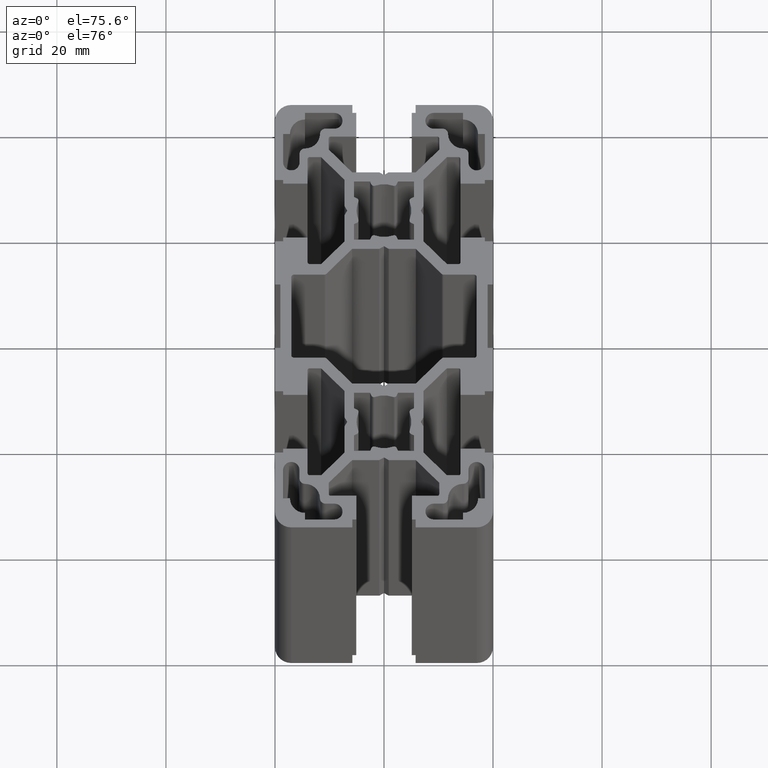
[diagram: clean part render]
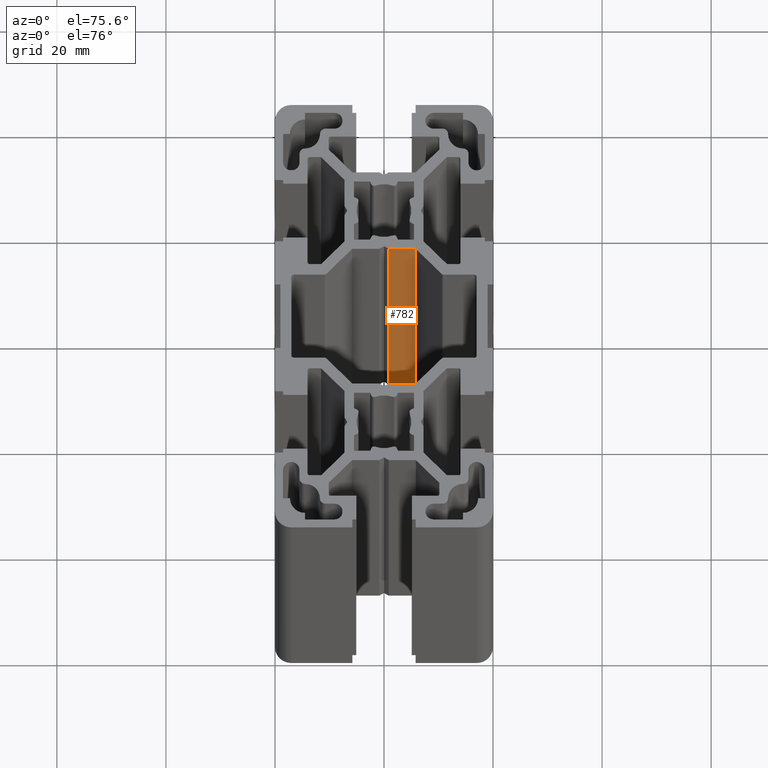
[diagram: same view with one face highlighted and labeled with its STEP entity id]
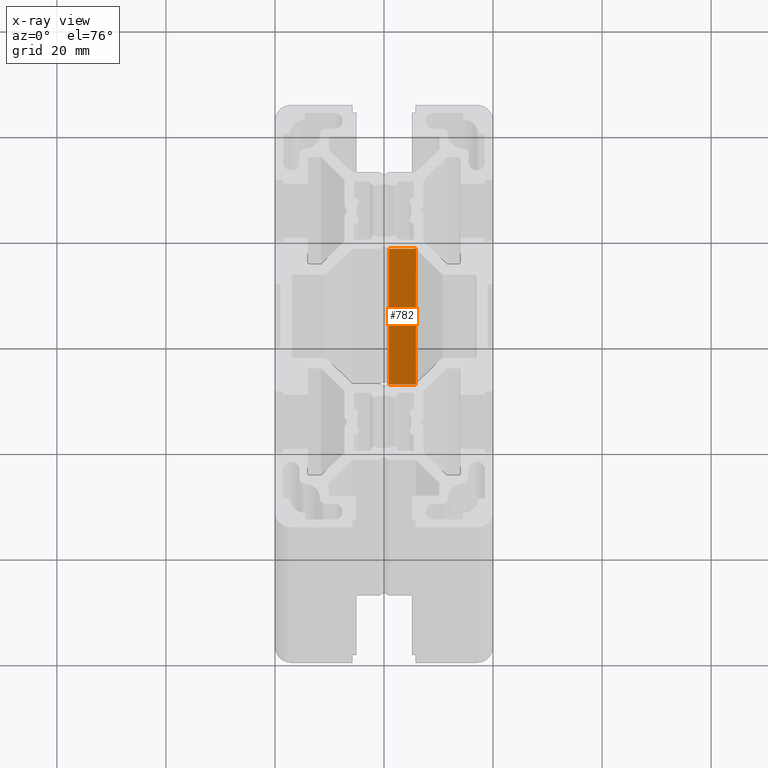
[diagram: x-ray of the same camera — body ghosted, the highlighted face saturated]
A machine part, auxiliary view. The second image highlights one B-rep face of the part: STEP entity #782.
The next image is the same camera in x-ray: the body ghosted, the highlighted face saturated — about 1% of this face is hidden behind the body in this view.
In plain terms, the highlighted planar face has unit normal (0, -1, 0).
Its self-contained STEP definition (entity closure, byte-faithful):
#742 = EDGE_CURVE ( 'NONE', #1116, #1919, #4338, .T. ) ;
#779 = ORIENTED_EDGE ( 'NONE', *, *, #1975, .F. ) ;
#781 = ORIENTED_EDGE ( 'NONE', *, *, #742, .F. ) ;
#782 = ADVANCED_FACE ( 'NONE', ( #4395 ), #4394, .T. ) ;
#783 = ORIENTED_EDGE ( 'NONE', *, *, #1176, .T. ) ;
#785 = EDGE_CURVE ( 'NONE', #1182, #1946, #4390, .T. ) ;
#787 = ORIENTED_EDGE ( 'NONE', *, *, #785, .T. ) ;
#804 = EDGE_LOOP ( 'NONE', ( #779, #781, #783, #787 ) ) ;
#1116 = VERTEX_POINT ( 'NONE', #5054 ) ;
#1176 = EDGE_CURVE ( 'NONE', #1116, #1182, #5136, .T. ) ;
#1182 = VERTEX_POINT ( 'NONE', #5177 ) ;
#1919 = VERTEX_POINT ( 'NONE', #6515 ) ;
#1946 = VERTEX_POINT ( 'NONE', #6539 ) ;
#1975 = EDGE_CURVE ( 'NONE', #1919, #1946, #6588, .T. ) ;
#4338 = LINE ( 'NONE', #4389, #4388 ) ;
#4387 = DIRECTION ( 'NONE',  ( -0.0000000000000000000, -0.0000000000000000000, -1.000000000000000000 ) ) ;
#4388 = VECTOR ( 'NONE', #4387, 1000.000000000000000 ) ;
#4389 = CARTESIAN_POINT ( 'NONE',  ( 5.835786312549496200, 12.75000000000000200, 100.0000000000000000 ) ) ;
#4390 = LINE ( 'NONE', #4447, #4446 ) ;
#4394 = PLANE ( 'NONE',  #4397 ) ;
#4395 = FACE_OUTER_BOUND ( 'NONE', #804, .T. ) ;
#4397 = AXIS2_PLACEMENT_3D ( 'NONE', #4452, #4451, #4450 ) ;
#4445 = DIRECTION ( 'NONE',  ( -0.0000000000000000000, -0.0000000000000000000, -1.000000000000000000 ) ) ;
#4446 = VECTOR ( 'NONE', #4445, 1000.000000000000000 ) ;
#4447 = CARTESIAN_POINT ( 'NONE',  ( 0.8660263574587669900, 12.75000000000000200, 100.0000000000000000 ) ) ;
#4450 = DIRECTION ( 'NONE',  ( 0.0000000000000000000, -0.0000000000000000000, -1.000000000000000000 ) ) ;
#4451 = DIRECTION ( 'NONE',  ( 0.0000000000000000000, -1.000000000000000000, 0.0000000000000000000 ) ) ;
#4452 = CARTESIAN_POINT ( 'NONE',  ( 0.8660263574587669900, 12.75000000000000200, 100.0000000000000000 ) ) ;
#5054 = CARTESIAN_POINT ( 'NONE',  ( 5.835786312549496200, 12.75000000000000200, 100.0000000000000000 ) ) ;
#5127 = DIRECTION ( 'NONE',  ( -1.000000000000000000, -0.0000000000000000000, -0.0000000000000000000 ) ) ;
#5128 = VECTOR ( 'NONE', #5127, 1000.000000000000000 ) ;
#5129 = CARTESIAN_POINT ( 'NONE',  ( 0.8660263574587669900, 12.75000000000000200, 100.0000000000000000 ) ) ;
#5136 = LINE ( 'NONE', #5129, #5128 ) ;
#5177 = CARTESIAN_POINT ( 'NONE',  ( 0.8660263574587669900, 12.75000000000000200, 100.0000000000000000 ) ) ;
#6515 = CARTESIAN_POINT ( 'NONE',  ( 5.835786312549496200, 12.75000000000000200, 0.0000000000000000000 ) ) ;
#6539 = CARTESIAN_POINT ( 'NONE',  ( 0.8660263574587669900, 12.75000000000000200, 0.0000000000000000000 ) ) ;
#6577 = DIRECTION ( 'NONE',  ( -1.000000000000000000, -0.0000000000000000000, -0.0000000000000000000 ) ) ;
#6578 = VECTOR ( 'NONE', #6577, 1000.000000000000000 ) ;
#6579 = CARTESIAN_POINT ( 'NONE',  ( 0.8660263574587669900, 12.75000000000000200, 0.0000000000000000000 ) ) ;
#6588 = LINE ( 'NONE', #6579, #6578 ) ;